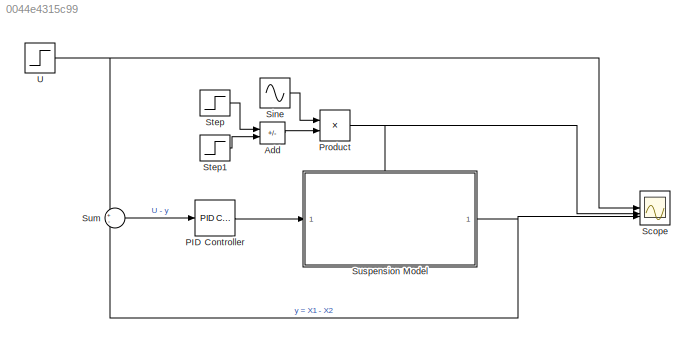
MODEL slx_0044e4315c99
KIND model
CONFIG AbsTol = auto
CONFIG EnableMultiTasking = off
CONFIG FixedStep = auto
CONFIG MaxStep = 0.01
CONFIG MinStep = auto
CONFIG RelTol = 1e-3
CONFIG SampleTimeConstraint = Unconstrained
CONFIG SolverName = VariableStepAuto
CONFIG StartTime = 0.0
CONFIG StopTime = 20
WORKSPACE source: mxarray member
WORKSPACE M1 = 2500
WORKSPACE M2 = 320
WORKSPACE b1 = 350
WORKSPACE b2 = 15020
WORKSPACE k1 = 80000
WORKSPACE k2 = 500000
BLOCK [Sum] Add
  IconShape = rectangular
  Inputs = +-
BLOCK [Reference] PID Controller  REF=slpidlib/PID Controller
  LibrarySourceBlock = simulink/Continuous/PID Controller
  SourceBlock = slpidlib/PID Controller
  SourceType = PID 1dof
BLOCK [Product] Product
BLOCK [Scope] Scope
  Floating = off
  NumInputPorts = 3
  ScopeSpecificationString = Simulink.scopes.TimeScopeBlockCfg('CurrentConfiguration', extmgr.ConfigurationSet(extmgr.Configuration('Core','General UI',true),extmgr.Configuration('Core','Source UI',true),extmgr.Configuration('Sources','WiredSimulink',true),extmgr.Configuration('Visuals','Time Domain',true,'SerializedDisplays',{struct('MinYLimReal','-0.13065','MaxYLimReal','1.17581','YLabelReal','','MinYLimMag','0.00000','MaxY...<+1368ch>
BLOCK [Sin] Sine
  Amplitude = 1.5
  Frequency = pi/2
  NameLocation = top
  Phase = -pi/2
  SampleTime = 0
BLOCK [Step] Step
  SampleTime = 0
  Time = 9
BLOCK [Step] Step1
  SampleTime = 0
  Time = 11
BLOCK [Sum] Sum
  Inputs = +-
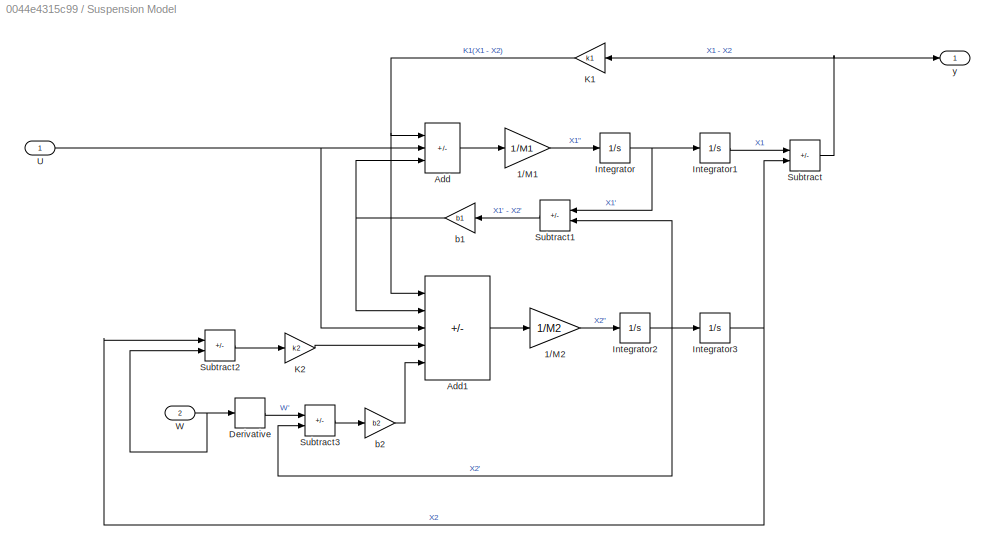
BLOCK [SubSystem] Suspension Model
  PortSchema = {"entries":[{"content":{"sides":[{"content":{"connectorIds":["In1"]},"type":"ConnectorPlacement.EquallySpacedRectSide","uuid":"0c28c1ec-f9ef-40c2-897a-1cd7f0d0a3f8"},{"content":{"connectorIds":["Out1"],"side":"RIGHT"},"type":"ConnectorPlacement.EquallySpacedRectSide","uuid":"f66e1639-0b60-4b0e-85c7-79f422b8e41d"},{"content":{"connectorIds":["In2"],"side":"TOP"},"type":"ConnectorPlacement.EquallySp...<+245ch>
BLOCK [Gain] Suspension Model/1//M1
  Gain = 1/M1
BLOCK [Gain] Suspension Model/1//M2
  Gain = 1/M2
BLOCK [Sum] Suspension Model/Add
  IconShape = rectangular
  Inputs = -+-
BLOCK [Sum] Suspension Model/Add1
  IconShape = rectangular
  Inputs = ++-++
BLOCK [Derivative] Suspension Model/Derivative
BLOCK [Integrator] Suspension Model/Integrator
BLOCK [Integrator] Suspension Model/Integrator1
BLOCK [Integrator] Suspension Model/Integrator2
BLOCK [Integrator] Suspension Model/Integrator3
BLOCK [Gain] Suspension Model/K1
  Gain = k1
BLOCK [Gain] Suspension Model/K2
  Gain = k2
BLOCK [Sum] Suspension Model/Subtract
  IconShape = rectangular
  Inputs = +-
BLOCK [Sum] Suspension Model/Subtract1
  IconShape = rectangular
  Inputs = +-
BLOCK [Sum] Suspension Model/Subtract2
  IconShape = rectangular
  Inputs = -+
BLOCK [Sum] Suspension Model/Subtract3
  IconShape = rectangular
  Inputs = +-
BLOCK [Inport] Suspension Model/U
BLOCK [Inport] Suspension Model/W
  Port = 2
BLOCK [Gain] Suspension Model/b1
  Gain = b1
BLOCK [Gain] Suspension Model/b2
  Gain = b2
BLOCK [Outport] Suspension Model/y
BLOCK [Step] U
  SampleTime = 0
LINE Add:1 -> Product:2
LINE PID Controller:1 -> Suspension Model:1
NET Product:1 -> Scope:2, Suspension Model:2
LINE Sine:1 -> Product:1
LINE Step1:1 -> Add:2
LINE Step:1 -> Add:1
LINE Sum:1 -> PID Controller:1
LINE Suspension Model/1//M1:1 -> Suspension Model/Integrator:1
LINE Suspension Model/1//M2:1 -> Suspension Model/Integrator2:1
LINE Suspension Model/Add1:1 -> Suspension Model/1//M2:1
LINE Suspension Model/Add:1 -> Suspension Model/1//M1:1
LINE Suspension Model/Derivative:1 -> Suspension Model/Subtract3:1
LINE Suspension Model/Integrator1:1 -> Suspension Model/Subtract:1
NET Suspension Model/Integrator2:1 -> Suspension Model/Integrator3:1, Suspension Model/Subtract1:2, Suspension Model/Subtract3:2
NET Suspension Model/Integrator3:1 -> Suspension Model/Subtract2:1, Suspension Model/Subtract:2
NET Suspension Model/Integrator:1 -> Suspension Model/Integrator1:1, Suspension Model/Subtract1:1
NET Suspension Model/K1:1 -> Suspension Model/Add1:1, Suspension Model/Add:1
LINE Suspension Model/K2:1 -> Suspension Model/Add1:4
LINE Suspension Model/Subtract1:1 -> Suspension Model/b1:1
LINE Suspension Model/Subtract2:1 -> Suspension Model/K2:1
LINE Suspension Model/Subtract3:1 -> Suspension Model/b2:1
NET Suspension Model/Subtract:1 -> Suspension Model/K1:1, Suspension Model/y:1
NET Suspension Model/U:1 -> Suspension Model/Add1:3, Suspension Model/Add:2
NET Suspension Model/W:1 -> Suspension Model/Derivative:1, Suspension Model/Subtract2:2
NET Suspension Model/b1:1 -> Suspension Model/Add1:2, Suspension Model/Add:3
LINE Suspension Model/b2:1 -> Suspension Model/Add1:5
NET Suspension Model:1 -> Scope:3, Sum:2
NET U:1 -> Scope:1, Sum:1
note: NET lines group one-source signal fan-out (src -> all destinations, sorted); 1:1 wires keep LINE
